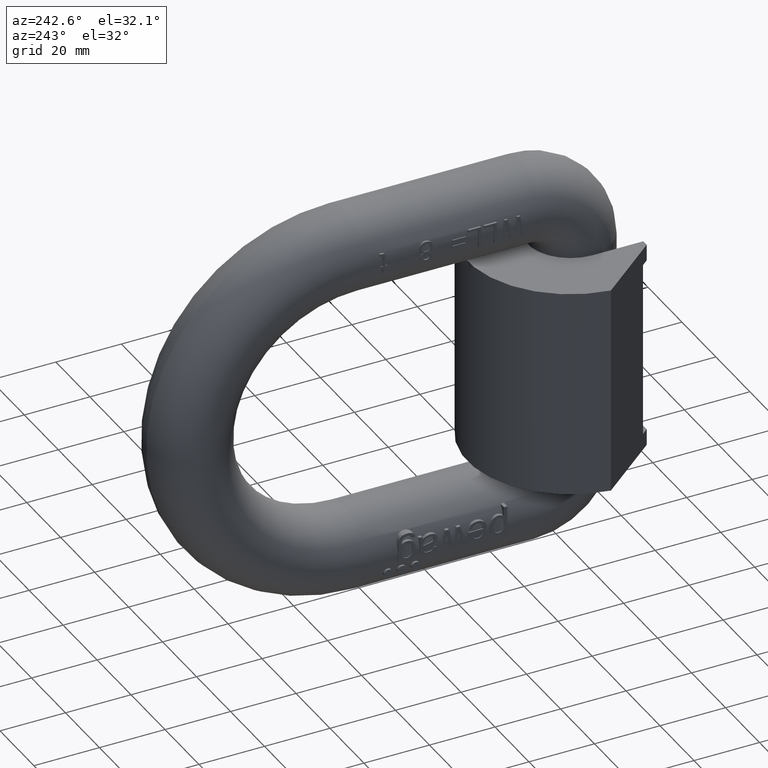
[diagram: clean part render]
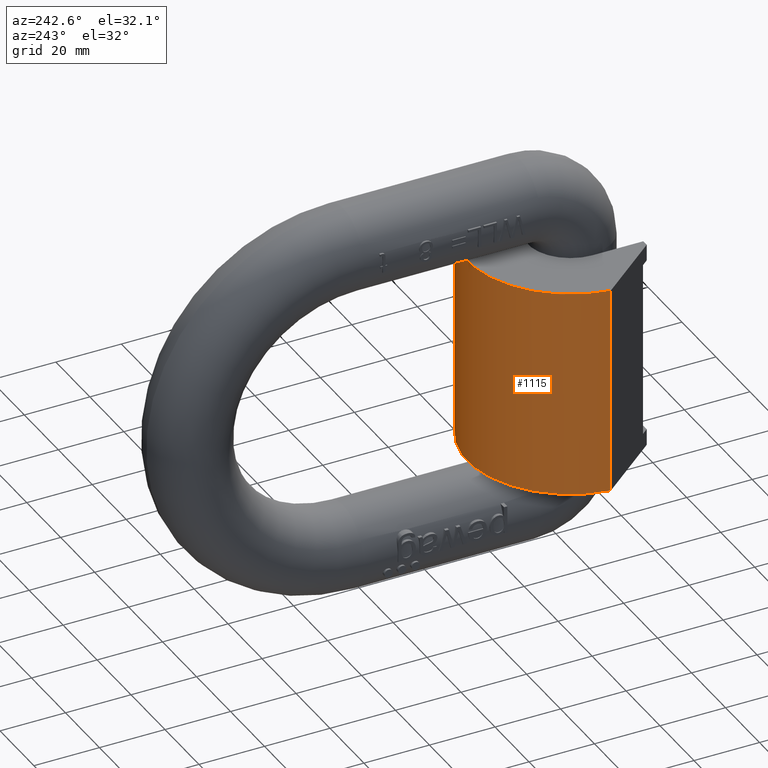
[diagram: same view with one face highlighted and labeled with its STEP entity id]
A machine part, auxiliary view. The second image highlights one B-rep face of the part: STEP entity #1115.
In plain terms, the highlighted cylindrical surface (partial cylindrical patch) has radius 31.5 mm, axis along (0, 0, -1).
Its self-contained STEP definition (entity closure, byte-faithful):
#1115=ADVANCED_FACE('',(#1504),#1481,.T.);
#1481=CYLINDRICAL_SURFACE('',#6759,31.5);
#1504=FACE_OUTER_BOUND('',#1848,.T.);
#1848=EDGE_LOOP('',(#2322,#2323,#2324,#2325));
#2268=CIRCLE('',#6757,31.5);
#2269=CIRCLE('',#6758,31.5);
#2322=ORIENTED_EDGE('',*,*,#4856,.F.);
#2323=ORIENTED_EDGE('',*,*,#4857,.F.);
#2324=ORIENTED_EDGE('',*,*,#4858,.F.);
#2325=ORIENTED_EDGE('',*,*,#4859,.T.);
#4218=VERTEX_POINT('',#8227);
#4219=VERTEX_POINT('',#8228);
#4220=VERTEX_POINT('',#8230);
#4221=VERTEX_POINT('',#8232);
#4856=EDGE_CURVE('',#4218,#4219,#5804,.T.);
#4857=EDGE_CURVE('',#4220,#4218,#2268,.T.);
#4858=EDGE_CURVE('',#4221,#4220,#5805,.T.);
#4859=EDGE_CURVE('',#4221,#4219,#2269,.T.);
#5804=LINE('',#8226,#6202);
#5805=LINE('',#8231,#6203);
#6202=VECTOR('',#7063,1.);
#6203=VECTOR('',#7066,1.);
#6757=AXIS2_PLACEMENT_3D('',#8229,#7064,#7065);
#6758=AXIS2_PLACEMENT_3D('',#8233,#7067,#7068);
#6759=AXIS2_PLACEMENT_3D('',#8234,#7069,#7070);
#7063=DIRECTION('',(0.,0.,-1.));
#7064=DIRECTION('',(0.,0.,1.));
#7065=DIRECTION('',(1.,0.,0.));
#7066=DIRECTION('',(0.,0.,1.));
#7067=DIRECTION('',(0.,0.,1.));
#7068=DIRECTION('',(1.,0.,0.));
#7069=DIRECTION('',(0.,0.,-1.));
#7070=DIRECTION('',(-1.,0.,0.));
#8226=CARTESIAN_POINT('',(-31.2603370435278,19.378315088417,32.));
#8227=CARTESIAN_POINT('',(-31.2603370435278,19.378315088417,32.));
#8228=CARTESIAN_POINT('',(-31.2603370435278,19.378315088417,-32.));
#8229=CARTESIAN_POINT('',(0.,15.5,32.));
#8230=CARTESIAN_POINT('',(31.2603370435278,19.378315088417,32.));
#8231=CARTESIAN_POINT('',(31.2603370435278,19.378315088417,32.));
#8232=CARTESIAN_POINT('',(31.2603370435278,19.378315088417,-32.));
#8233=CARTESIAN_POINT('',(0.,15.5,-32.));
#8234=CARTESIAN_POINT('',(0.,15.5,32.));